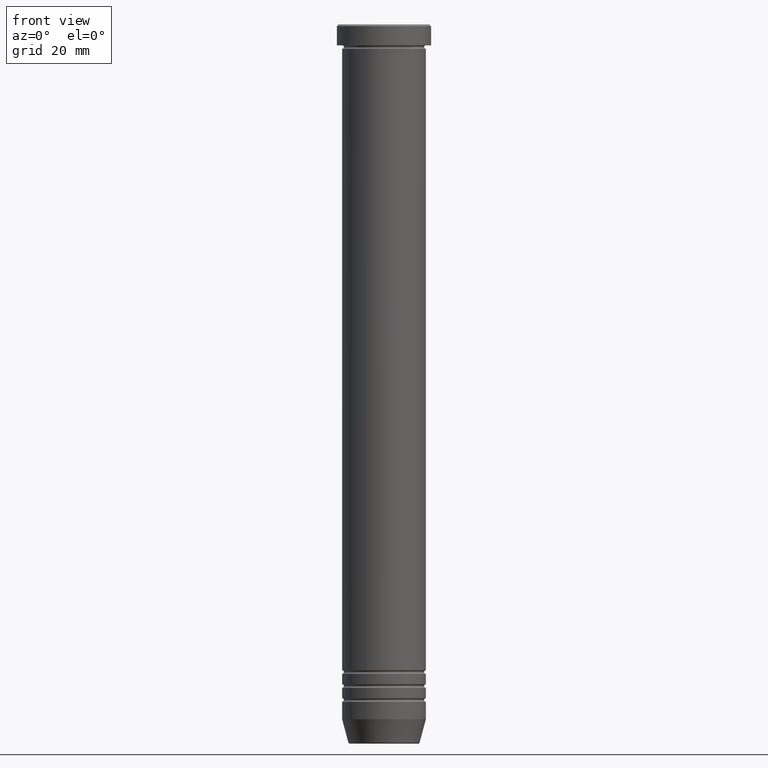
[diagram: clean part render]
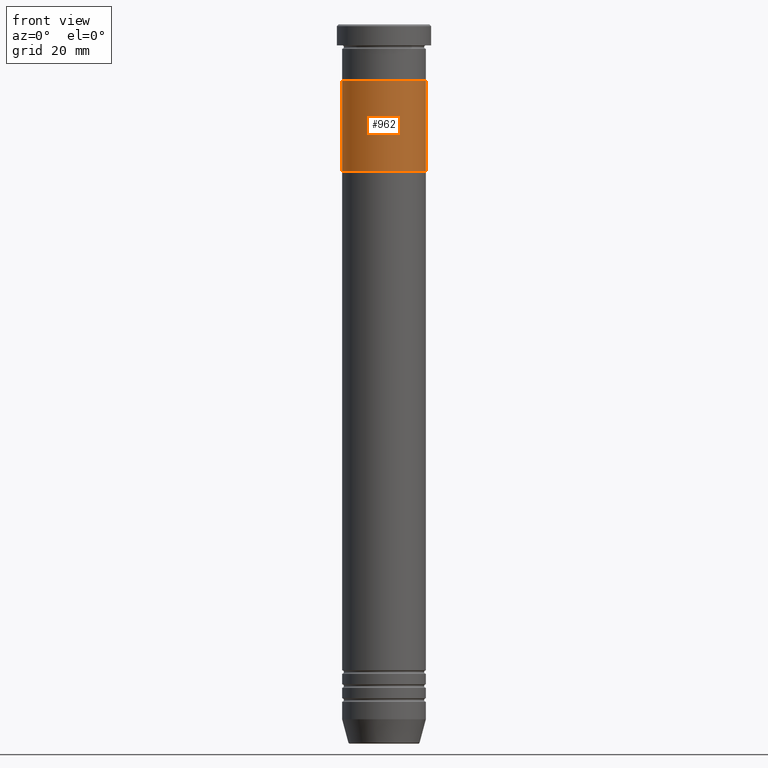
[diagram: same view with one face highlighted and labeled with its STEP entity id]
A machine part, front view. The second image highlights one B-rep face of the part: STEP entity #962.
In plain terms, the highlighted cylindrical surface (partial cylindrical patch) has radius 12 mm, axis along (-0, -0, 1).
Its self-contained STEP definition (entity closure, byte-faithful):
#46 = LINE ( 'NONE', #910, #221 ) ;
#80 = DIRECTION ( 'NONE',  ( -1.000000000000000000, 0.000000000000000000, 0.000000000000000000 ) ) ;
#85 = VECTOR ( 'NONE', #942, 1000.000000000000000 ) ;
#137 = CARTESIAN_POINT ( 'NONE',  ( -12.00000000000000178, 1.469576158976823947E-15, -41.99999999999999289 ) ) ;
#142 = VERTEX_POINT ( 'NONE', #890 ) ;
#150 = AXIS2_PLACEMENT_3D ( 'NONE', #659, #274, #635 ) ;
#184 = DIRECTION ( 'NONE',  ( -0.000000000000000000, -0.000000000000000000, 1.000000000000000000 ) ) ;
#221 = VECTOR ( 'NONE', #184, 1000.000000000000000 ) ;
#225 = VERTEX_POINT ( 'NONE', #298 ) ;
#243 = DIRECTION ( 'NONE',  ( 1.000000000000000000, 0.000000000000000000, 0.000000000000000000 ) ) ;
#260 = EDGE_LOOP ( 'NONE', ( #1089, #969, #726, #746 ) ) ;
#274 = DIRECTION ( 'NONE',  ( 0.000000000000000000, 0.000000000000000000, -1.000000000000000000 ) ) ;
#298 = CARTESIAN_POINT ( 'NONE',  ( -12.00000000000000178, 1.469576158976823947E-15, -16.00000000000000000 ) ) ;
#308 = CARTESIAN_POINT ( 'NONE',  ( 12.00000000000000178, 0.000000000000000000, -16.00000000000000000 ) ) ;
#325 = CYLINDRICAL_SURFACE ( 'NONE', #976, 12.00000000000000178 ) ;
#346 = EDGE_CURVE ( 'NONE', #142, #592, #1012, .T. ) ;
#388 = VERTEX_POINT ( 'NONE', #308 ) ;
#512 = AXIS2_PLACEMENT_3D ( 'NONE', #965, #525, #80 ) ;
#525 = DIRECTION ( 'NONE',  ( 0.000000000000000000, 0.000000000000000000, -1.000000000000000000 ) ) ;
#592 = VERTEX_POINT ( 'NONE', #137 ) ;
#594 = CIRCLE ( 'NONE', #150, 12.00000000000000178 ) ;
#635 = DIRECTION ( 'NONE',  ( -1.000000000000000000, 0.000000000000000000, 0.000000000000000000 ) ) ;
#659 = CARTESIAN_POINT ( 'NONE',  ( 0.000000000000000000, 0.000000000000000000, -16.00000000000000000 ) ) ;
#686 = CARTESIAN_POINT ( 'NONE',  ( 0.000000000000000000, 0.000000000000000000, -41.99999999999999289 ) ) ;
#726 = ORIENTED_EDGE ( 'NONE', *, *, #745, .T. ) ;
#745 = EDGE_CURVE ( 'NONE', #142, #388, #46, .T. ) ;
#746 = ORIENTED_EDGE ( 'NONE', *, *, #939, .T. ) ;
#890 = CARTESIAN_POINT ( 'NONE',  ( 12.00000000000000178, 0.000000000000000000, -41.99999999999999289 ) ) ;
#910 = CARTESIAN_POINT ( 'NONE',  ( 12.00000000000000178, 0.000000000000000000, -41.99999999999999289 ) ) ;
#932 = LINE ( 'NONE', #1109, #85 ) ;
#939 = EDGE_CURVE ( 'NONE', #388, #225, #594, .T. ) ;
#942 = DIRECTION ( 'NONE',  ( -0.000000000000000000, -0.000000000000000000, 1.000000000000000000 ) ) ;
#956 = EDGE_CURVE ( 'NONE', #592, #225, #932, .T. ) ;
#962 = ADVANCED_FACE ( 'NONE', ( #1116 ), #325, .T. ) ;
#965 = CARTESIAN_POINT ( 'NONE',  ( 0.000000000000000000, 0.000000000000000000, -41.99999999999999289 ) ) ;
#969 = ORIENTED_EDGE ( 'NONE', *, *, #346, .F. ) ;
#976 = AXIS2_PLACEMENT_3D ( 'NONE', #686, #1036, #243 ) ;
#1012 = CIRCLE ( 'NONE', #512, 12.00000000000000178 ) ;
#1036 = DIRECTION ( 'NONE',  ( -0.000000000000000000, -0.000000000000000000, 1.000000000000000000 ) ) ;
#1089 = ORIENTED_EDGE ( 'NONE', *, *, #956, .F. ) ;
#1109 = CARTESIAN_POINT ( 'NONE',  ( -12.00000000000000178, 1.469576158976823947E-15, -41.99999999999999289 ) ) ;
#1116 = FACE_OUTER_BOUND ( 'NONE', #260, .T. ) ;